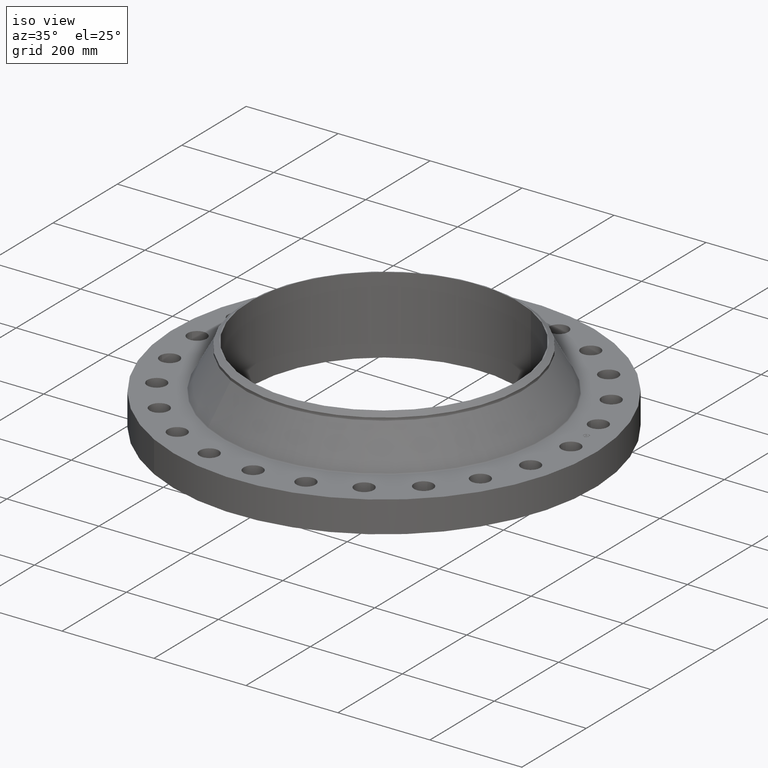
[diagram: clean part render]
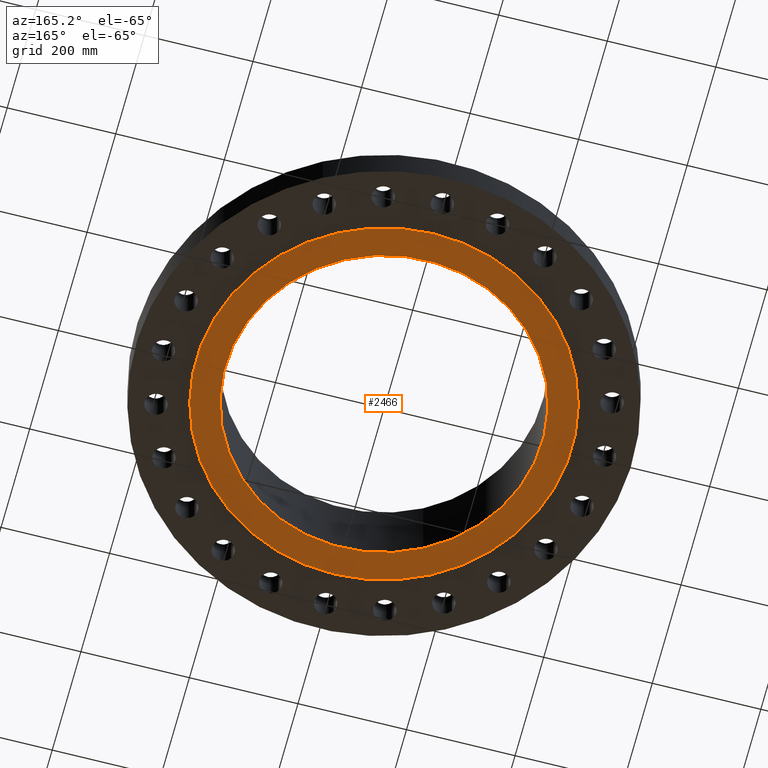
[diagram: tour spotlight — one face highlighted and labeled with its STEP entity id]
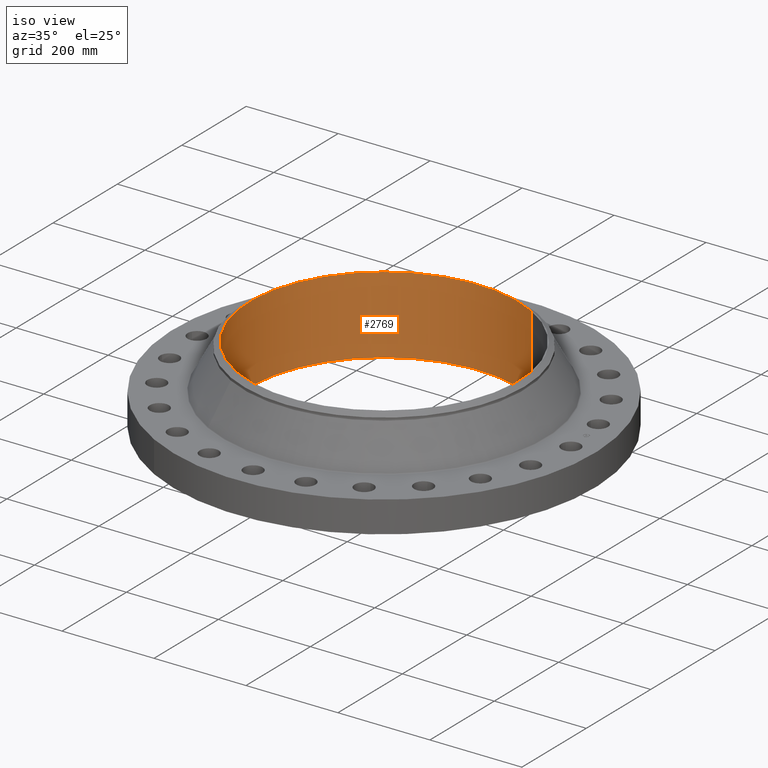
[diagram: tour spotlight — one face highlighted and labeled with its STEP entity id]
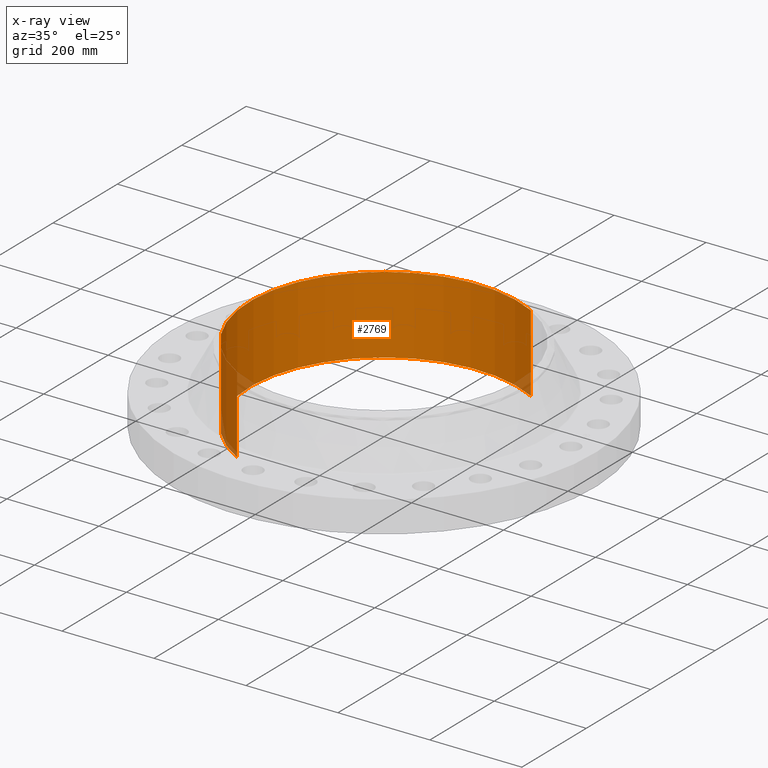
[diagram: x-ray of the same camera — body ghosted, this tour face saturated]
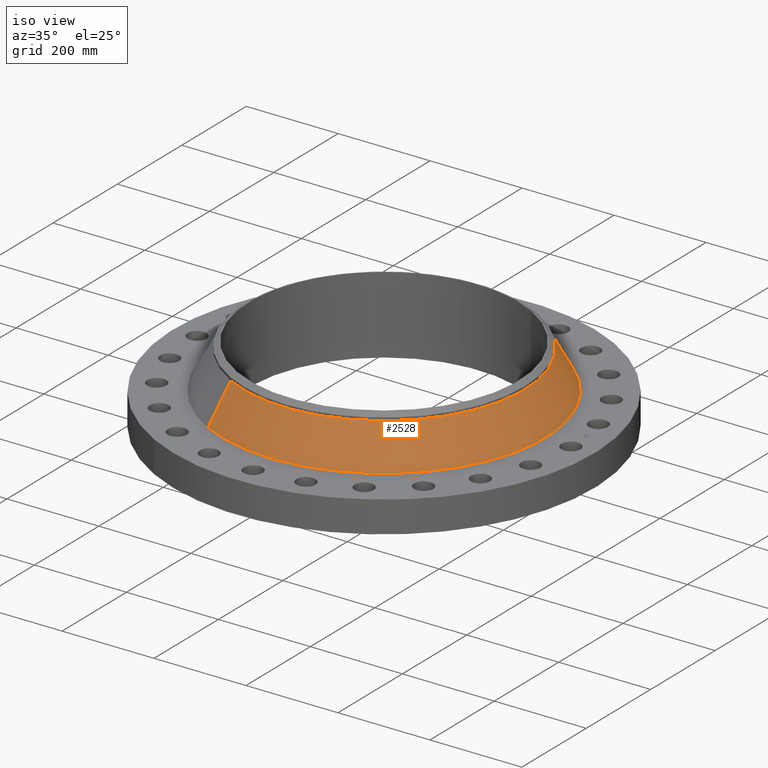
[diagram: tour spotlight — one face highlighted and labeled with its STEP entity id]
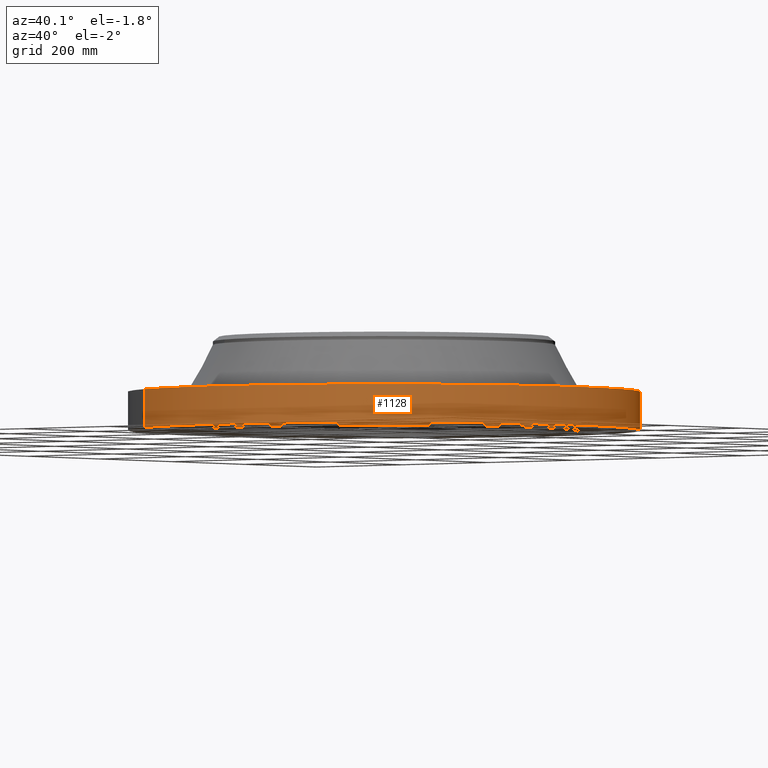
[diagram: tour spotlight — one face highlighted and labeled with its STEP entity id]
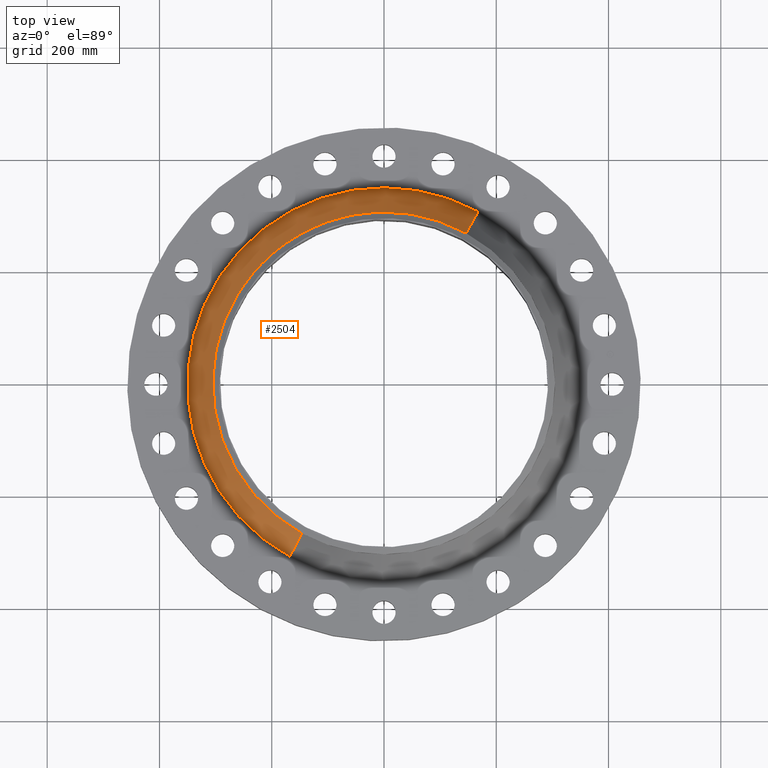
[diagram: tour spotlight — one face highlighted and labeled with its STEP entity id]
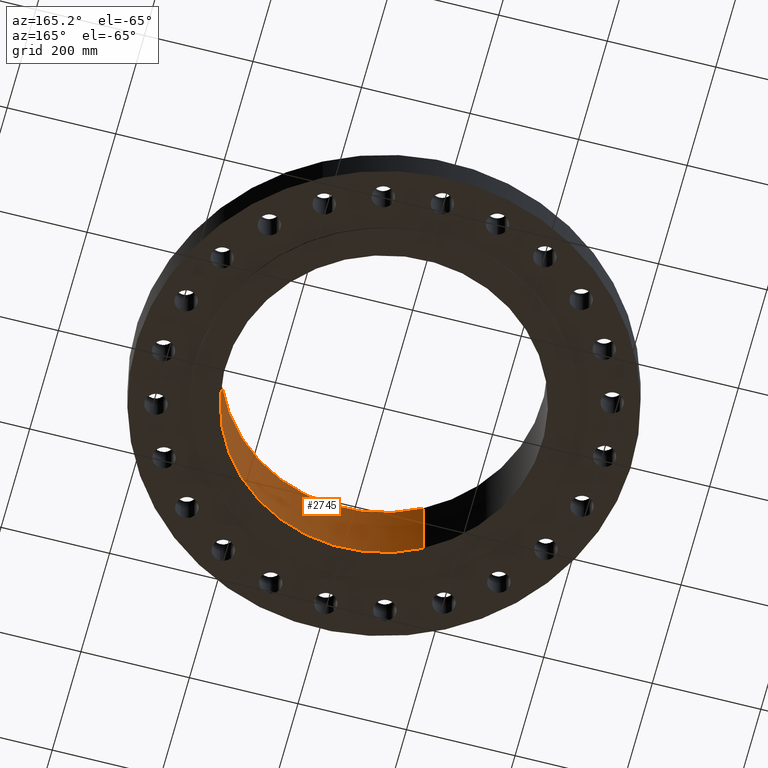
[diagram: tour spotlight — one face highlighted and labeled with its STEP entity id]
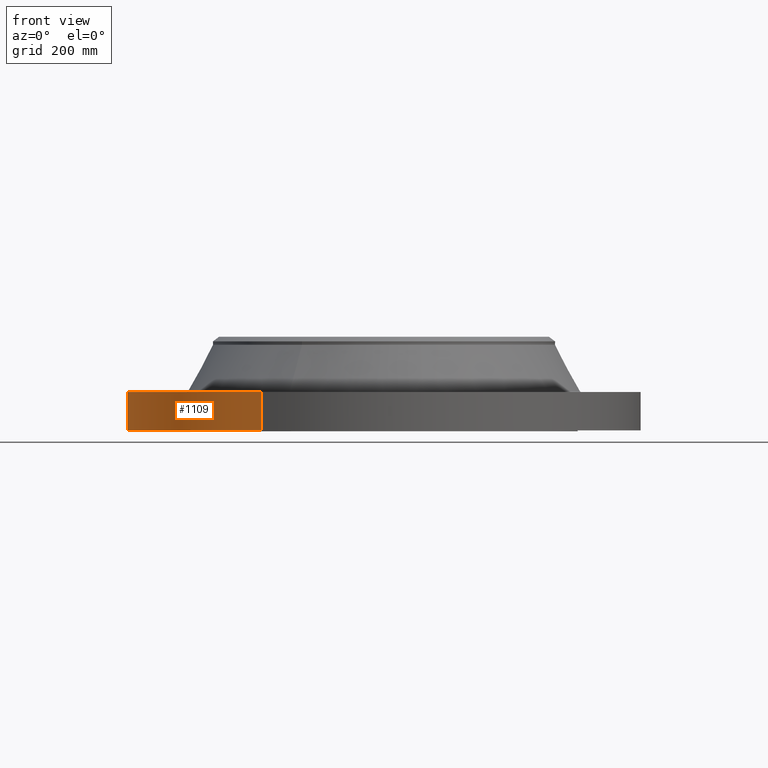
[diagram: tour spotlight — one face highlighted and labeled with its STEP entity id]
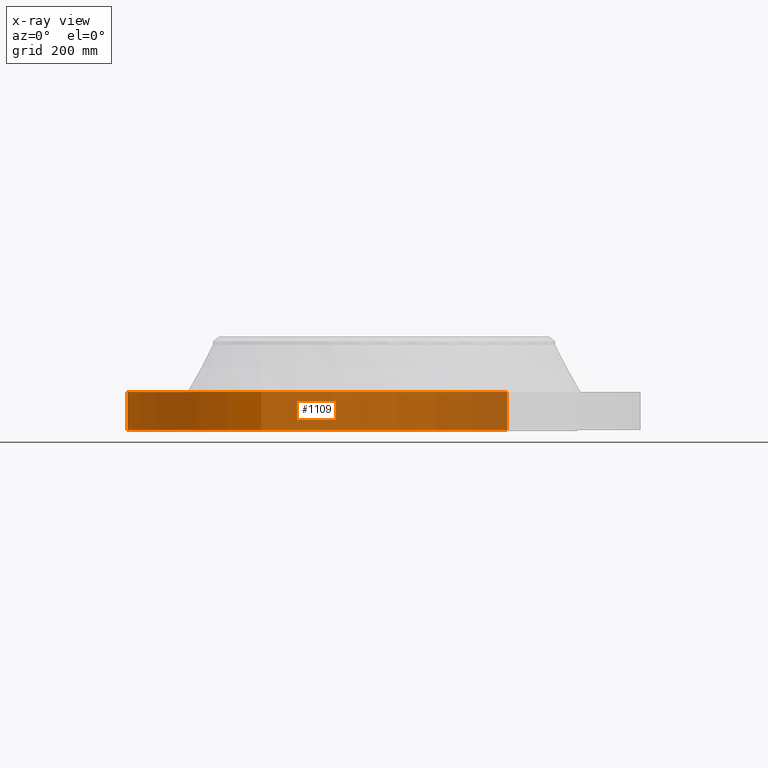
[diagram: x-ray of the same camera — body ghosted, this tour face saturated]
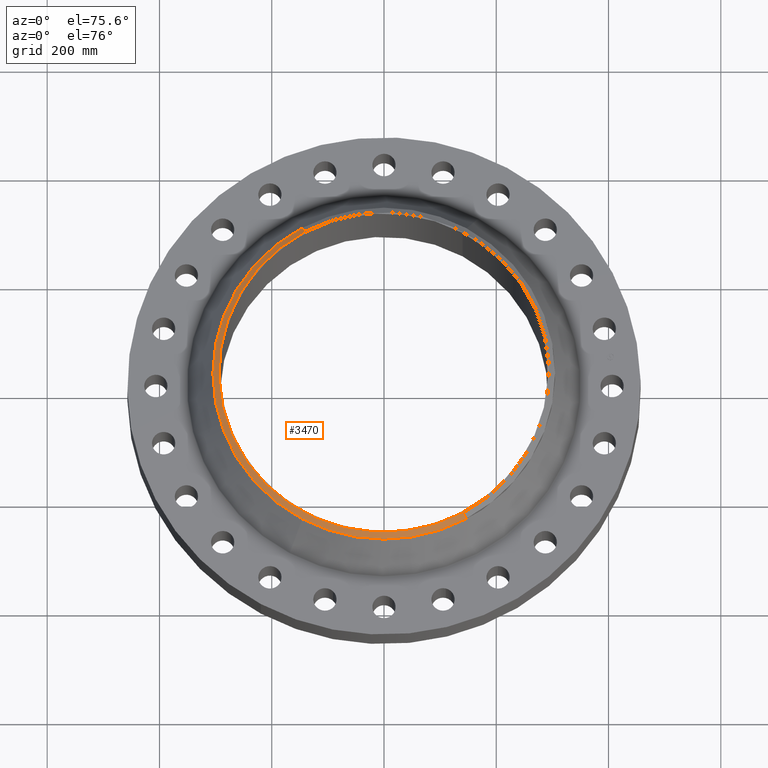
[diagram: tour spotlight — one face highlighted and labeled with its STEP entity id]
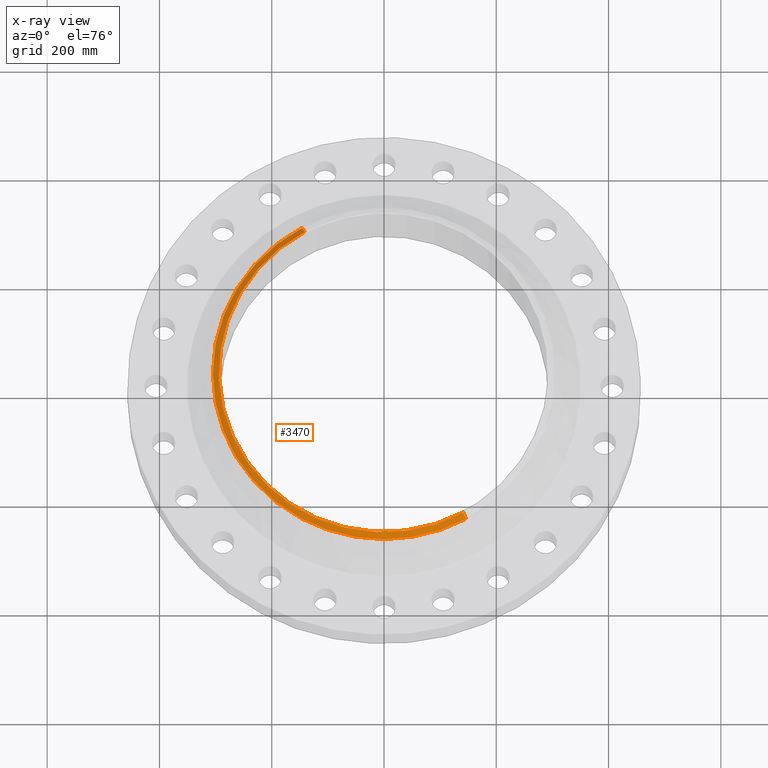
[diagram: x-ray of the same camera — body ghosted, this tour face saturated]
A machine part: a face-by-face anatomy tour. The part has 451 B-rep faces; the first image is the clean iso view, then the 8 largest visible faces are spotlighted one at a time (largest first), each with its STEP entity span.

Face 1 — auxiliary view, entity #2466. In plain terms, the highlighted planar face has unit normal (0, 0, -1).
Definition (entity closure, byte-faithful):
#1143=AXIS2_PLACEMENT_3D('Circle Axis2P3D',#1141,#1142,$) ;
#1181=AXIS2_PLACEMENT_3D('Circle Axis2P3D',#1179,#1180,$) ;
#2442=AXIS2_PLACEMENT_3D('Plane Axis2P3D',#2439,#2440,#2441) ;
#2450=AXIS2_PLACEMENT_3D('Circle Axis2P3D',#2448,#2449,$) ;
#2459=AXIS2_PLACEMENT_3D('Circle Axis2P3D',#2457,#2458,$) ;
#1141=CARTESIAN_POINT('Axis2P3D Location',(0.,0.,-0.0624999999941)) ;
#1145=CARTESIAN_POINT('Vertex',(6.53217296351,11.9570624058,-0.0625000000003)) ;
#1147=CARTESIAN_POINT('Vertex',(-6.53217296351,-11.9570624058,-0.0625000000003)) ;
#1179=CARTESIAN_POINT('Axis2P3D Location',(0.,0.,-0.0625000000002)) ;
#2439=CARTESIAN_POINT('Axis2P3D Location',(0.,11.5,-0.0625000000003)) ;
#2448=CARTESIAN_POINT('Axis2P3D Location',(-4.36631308537E-011,1.85748179742E-012,-0.0625000000003)) ;
#2452=CARTESIAN_POINT('Vertex',(5.51339369395,10.0921994617,-0.0625000000004)) ;
#2454=CARTESIAN_POINT('Vertex',(-5.51339369395,-10.0921994617,-0.0624999999941)) ;
#2457=CARTESIAN_POINT('Axis2P3D Location',(1.28099106126E-011,-2.89990953385E-011,-0.0625000000003)) ;
#1142=DIRECTION('Axis2P3D Direction',(0.,0.,-0.0393700787402)) ;
#1180=DIRECTION('Axis2P3D Direction',(0.,0.,-0.0393700787402)) ;
#2440=DIRECTION('Axis2P3D Direction',(0.,0.,-0.0393700787402)) ;
#2441=DIRECTION('Axis2P3D XDirection',(0.0393700787402,0.,0.)) ;
#2449=DIRECTION('Axis2P3D Direction',(0.,0.,-0.0393700787402)) ;
#2458=DIRECTION('Axis2P3D Direction',(0.,0.,-0.0393700787402)) ;
#2445=ORIENTED_EDGE('',*,*,#1183,.T.) ;
#2446=ORIENTED_EDGE('',*,*,#1149,.T.) ;
#2463=ORIENTED_EDGE('',*,*,#2456,.F.) ;
#2464=ORIENTED_EDGE('',*,*,#2461,.F.) ;
#2465=FACE_BOUND('',#2462,.T.) ;
#2466=ADVANCED_FACE('PartBody',(#2447,#2465),#2443,.T.) ;
#1144=CIRCLE('generated circle',#1143,13.6250000001) ;
#1182=CIRCLE('generated circle',#1181,13.6250000001) ;
#2451=CIRCLE('generated circle',#2450,11.5) ;
#2460=CIRCLE('generated circle',#2459,11.5) ;
#1149=EDGE_CURVE('',#1146,#1148,#1144,.T.) ;
#1183=EDGE_CURVE('',#1148,#1146,#1182,.T.) ;
#2456=EDGE_CURVE('',#2453,#2455,#2451,.T.) ;
#2461=EDGE_CURVE('',#2455,#2453,#2460,.T.) ;
#2444=EDGE_LOOP('',(#2445,#2446)) ;
#2462=EDGE_LOOP('',(#2463,#2464)) ;
#2447=FACE_OUTER_BOUND('',#2444,.T.) ;
#2443=PLANE('',#2442) ;
#1146=VERTEX_POINT('',#1145) ;
#1148=VERTEX_POINT('',#1147) ;
#2453=VERTEX_POINT('',#2452) ;
#2455=VERTEX_POINT('',#2454) ;

Face 2 — iso view, entity #2769. An x-ray twin of the same camera follows (body ghosted, this face saturated) — the face is partly hidden behind the body. In plain terms, the highlighted cylindrical surface (partial cylindrical patch) has radius 292.1 mm, axis along (-0, 0, -1).
Definition (entity closure, byte-faithful):
#2459=AXIS2_PLACEMENT_3D('Circle Axis2P3D',#2457,#2458,$) ;
#2756=AXIS2_PLACEMENT_3D('Cylinder Axis2P3D',#2753,#2754,#2755) ;
#2760=AXIS2_PLACEMENT_3D('Circle Axis2P3D',#2758,#2759,$) ;
#2452=CARTESIAN_POINT('Vertex',(5.51339369395,10.0921994617,-0.0625000000004)) ;
#2454=CARTESIAN_POINT('Vertex',(-5.51339369395,-10.0921994617,-0.0624999999941)) ;
#2457=CARTESIAN_POINT('Axis2P3D Location',(1.28099106126E-011,-2.89990953385E-011,-0.0625000000003)) ;
#2724=CARTESIAN_POINT('Vertex',(5.51339369395,10.0921994617,6.56000000001)) ;
#2726=CARTESIAN_POINT('Vertex',(-5.51339369394,-10.0921994617,6.56000000001)) ;
#2729=CARTESIAN_POINT('Line Origine',(5.51339369395,10.0921994617,3.24875000001)) ;
#2734=CARTESIAN_POINT('Line Origine',(-5.51339369395,-10.0921994617,3.24875000001)) ;
#2753=CARTESIAN_POINT('Axis2P3D Location',(0.,0.,3.24875000001)) ;
#2758=CARTESIAN_POINT('Axis2P3D Location',(0.,0.,6.56000000001)) ;
#2458=DIRECTION('Axis2P3D Direction',(0.,0.,-0.0393700787402)) ;
#2730=DIRECTION('Vector Direction',(0.,0.,-0.0393700787402)) ;
#2735=DIRECTION('Vector Direction',(0.,0.,-0.0393700787402)) ;
#2754=DIRECTION('Axis2P3D Direction',(-0.,0.,-0.0393700787402)) ;
#2755=DIRECTION('Axis2P3D XDirection',(-0.0188750212049,-0.0345504945626,0.)) ;
#2759=DIRECTION('Axis2P3D Direction',(-0.,0.,-0.0393700787402)) ;
#2731=VECTOR('Line Direction',#2730,0.0393700787402) ;
#2736=VECTOR('Line Direction',#2735,0.0393700787402) ;
#2764=ORIENTED_EDGE('',*,*,#2762,.F.) ;
#2765=ORIENTED_EDGE('',*,*,#2738,.T.) ;
#2766=ORIENTED_EDGE('',*,*,#2461,.T.) ;
#2767=ORIENTED_EDGE('',*,*,#2733,.F.) ;
#2769=ADVANCED_FACE('PartBody',(#2768),#2757,.F.) ;
#2460=CIRCLE('generated circle',#2459,11.5) ;
#2761=CIRCLE('generated circle',#2760,11.5) ;
#2757=CYLINDRICAL_SURFACE('generated cylinder',#2756,11.5) ;
#2461=EDGE_CURVE('',#2455,#2453,#2460,.T.) ;
#2733=EDGE_CURVE('',#2725,#2453,#2732,.T.) ;
#2738=EDGE_CURVE('',#2727,#2455,#2737,.T.) ;
#2762=EDGE_CURVE('',#2727,#2725,#2761,.T.) ;
#2763=EDGE_LOOP('',(#2764,#2765,#2766,#2767)) ;
#2768=FACE_OUTER_BOUND('',#2763,.T.) ;
#2732=LINE('Line',#2729,#2731) ;
#2737=LINE('Line',#2734,#2736) ;
#2453=VERTEX_POINT('',#2452) ;
#2455=VERTEX_POINT('',#2454) ;
#2725=VERTEX_POINT('',#2724) ;
#2727=VERTEX_POINT('',#2726) ;

Face 3 — iso view, entity #2528. In plain terms, the highlighted conical surface has half-angle 28.667 deg.
Definition (entity closure, byte-faithful):
#2347=AXIS2_PLACEMENT_3D('Circle Axis2P3D',#2345,#2346,$) ;
#2515=AXIS2_PLACEMENT_3D('Cone Axis2P3D',#2512,#2513,#2514) ;
#2519=AXIS2_PLACEMENT_3D('Circle Axis2P3D',#2517,#2518,$) ;
#2311=CARTESIAN_POINT('Vertex',(-6.60450156515,-12.089459023,2.75243351423)) ;
#2318=CARTESIAN_POINT('Vertex',(6.60450156517,12.089459023,2.75243351421)) ;
#2345=CARTESIAN_POINT('Axis2P3D Location',(0.,0.,2.75243351421)) ;
#2479=CARTESIAN_POINT('Line Origine',(-6.1788040142,-11.3102248828,4.37648449784)) ;
#2483=CARTESIAN_POINT('Vertex',(-5.75310646325,-10.5309907427,6.00053548147)) ;
#2490=CARTESIAN_POINT('Vertex',(5.75310646326,10.5309907427,6.00053548146)) ;
#2493=CARTESIAN_POINT('Line Origine',(6.1788040142,11.3102248828,4.37648449784)) ;
#2512=CARTESIAN_POINT('Axis2P3D Location',(0.,0.,6.00053548147)) ;
#2517=CARTESIAN_POINT('Axis2P3D Location',(0.,0.,6.00053548147)) ;
#2346=DIRECTION('Axis2P3D Direction',(-0.,0.,-0.0393700787402)) ;
#2480=DIRECTION('Vector Direction',(-0.00905473866589,-0.0165745879512,-0.0345441433813)) ;
#2494=DIRECTION('Vector Direction',(0.00905473866589,0.0165745879512,-0.0345441433813)) ;
#2513=DIRECTION('Axis2P3D Direction',(0.,0.,-0.0393700787402)) ;
#2514=DIRECTION('Axis2P3D XDirection',(0.0188750212049,0.0345504945626,0.)) ;
#2518=DIRECTION('Axis2P3D Direction',(-0.,0.,-0.0393700787402)) ;
#2481=VECTOR('Line Direction',#2480,0.0393700787402) ;
#2495=VECTOR('Line Direction',#2494,0.0393700787402) ;
#2523=ORIENTED_EDGE('',*,*,#2349,.F.) ;
#2524=ORIENTED_EDGE('',*,*,#2497,.T.) ;
#2525=ORIENTED_EDGE('',*,*,#2521,.T.) ;
#2526=ORIENTED_EDGE('',*,*,#2485,.F.) ;
#2528=ADVANCED_FACE('PartBody',(#2527),#2516,.T.) ;
#2348=CIRCLE('generated circle',#2347,13.7758651414) ;
#2520=CIRCLE('generated circle',#2519,12.) ;
#2516=CONICAL_SURFACE('Cone',#2515,12.,0.500336382494) ;
#2349=EDGE_CURVE('',#2319,#2312,#2348,.T.) ;
#2485=EDGE_CURVE('',#2312,#2484,#2482,.F.) ;
#2497=EDGE_CURVE('',#2319,#2491,#2496,.F.) ;
#2521=EDGE_CURVE('',#2491,#2484,#2520,.T.) ;
#2522=EDGE_LOOP('',(#2523,#2524,#2525,#2526)) ;
#2527=FACE_OUTER_BOUND('',#2522,.T.) ;
#2482=LINE('Line',#2479,#2481) ;
#2496=LINE('Line',#2493,#2495) ;
#2312=VERTEX_POINT('',#2311) ;
#2319=VERTEX_POINT('',#2318) ;
#2484=VERTEX_POINT('',#2483) ;
#2491=VERTEX_POINT('',#2490) ;

Face 4 — auxiliary view, entity #1128. In plain terms, the highlighted cylindrical surface (partial cylindrical patch) has radius 457.2 mm, axis along (0, 0, -1).
Definition (entity closure, byte-faithful):
#152=AXIS2_PLACEMENT_3D('Circle Axis2P3D',#150,#151,$) ;
#610=AXIS2_PLACEMENT_3D('Circle Axis2P3D',#608,#609,$) ;
#1120=AXIS2_PLACEMENT_3D('Cylinder Axis2P3D',#1117,#1118,#1119) ;
#145=CARTESIAN_POINT('Vertex',(-8.62965969493,-15.7964861141,1.1189649382E-015)) ;
#147=CARTESIAN_POINT('Vertex',(8.62965969493,15.7964861141,2.05587428096E-011)) ;
#150=CARTESIAN_POINT('Axis2P3D Location',(4.36664877485E-011,-4.51838042047E-012,0.)) ;
#608=CARTESIAN_POINT('Axis2P3D Location',(4.36664877485E-011,-4.52061835035E-012,2.69000000001)) ;
#612=CARTESIAN_POINT('Vertex',(8.62965969492,15.7964861141,2.69)) ;
#614=CARTESIAN_POINT('Vertex',(-8.62965969493,-15.7964861141,2.69)) ;
#1093=CARTESIAN_POINT('Line Origine',(-8.62965969493,-15.7964861141,1.34500000001)) ;
#1098=CARTESIAN_POINT('Line Origine',(8.62965969493,15.7964861141,1.34500000001)) ;
#1117=CARTESIAN_POINT('Axis2P3D Location',(0.,0.,3.24875000001)) ;
#151=DIRECTION('Axis2P3D Direction',(0.,0.,-0.0393700787402)) ;
#609=DIRECTION('Axis2P3D Direction',(0.,0.,-0.0393700787402)) ;
#1094=DIRECTION('Vector Direction',(0.,0.,-0.0393700787402)) ;
#1099=DIRECTION('Vector Direction',(0.,0.,-0.0393700787402)) ;
#1118=DIRECTION('Axis2P3D Direction',(0.,0.,-0.0393700787402)) ;
#1119=DIRECTION('Axis2P3D XDirection',(0.0188750212049,0.0345504945626,0.)) ;
#1095=VECTOR('Line Direction',#1094,0.0393700787402) ;
#1100=VECTOR('Line Direction',#1099,0.0393700787402) ;
#1123=ORIENTED_EDGE('',*,*,#154,.F.) ;
#1124=ORIENTED_EDGE('',*,*,#1102,.T.) ;
#1125=ORIENTED_EDGE('',*,*,#616,.T.) ;
#1126=ORIENTED_EDGE('',*,*,#1097,.F.) ;
#1128=ADVANCED_FACE('PartBody',(#1127),#1121,.T.) ;
#153=CIRCLE('generated circle',#152,18.0000000001) ;
#611=CIRCLE('generated circle',#610,18.0000000001) ;
#1121=CYLINDRICAL_SURFACE('generated cylinder',#1120,18.0000000001) ;
#154=EDGE_CURVE('',#148,#146,#153,.T.) ;
#616=EDGE_CURVE('',#613,#615,#611,.T.) ;
#1097=EDGE_CURVE('',#146,#615,#1096,.F.) ;
#1102=EDGE_CURVE('',#148,#613,#1101,.F.) ;
#1122=EDGE_LOOP('',(#1123,#1124,#1125,#1126)) ;
#1127=FACE_OUTER_BOUND('',#1122,.T.) ;
#1096=LINE('Line',#1093,#1095) ;
#1101=LINE('Line',#1098,#1100) ;
#146=VERTEX_POINT('',#145) ;
#148=VERTEX_POINT('',#147) ;
#613=VERTEX_POINT('',#612) ;
#615=VERTEX_POINT('',#614) ;

Face 5 — top view, entity #2504. In plain terms, the highlighted conical surface has half-angle 28.667 deg.
Definition (entity closure, byte-faithful):
#2316=AXIS2_PLACEMENT_3D('Circle Axis2P3D',#2314,#2315,$) ;
#2477=AXIS2_PLACEMENT_3D('Cone Axis2P3D',#2474,#2475,#2476) ;
#2488=AXIS2_PLACEMENT_3D('Circle Axis2P3D',#2486,#2487,$) ;
#2311=CARTESIAN_POINT('Vertex',(-6.60450156515,-12.089459023,2.75243351423)) ;
#2314=CARTESIAN_POINT('Axis2P3D Location',(0.,0.,2.75243351421)) ;
#2318=CARTESIAN_POINT('Vertex',(6.60450156517,12.089459023,2.75243351421)) ;
#2474=CARTESIAN_POINT('Axis2P3D Location',(0.,0.,6.00053548147)) ;
#2479=CARTESIAN_POINT('Line Origine',(-6.1788040142,-11.3102248828,4.37648449784)) ;
#2483=CARTESIAN_POINT('Vertex',(-5.75310646325,-10.5309907427,6.00053548147)) ;
#2486=CARTESIAN_POINT('Axis2P3D Location',(0.,0.,6.00053548147)) ;
#2490=CARTESIAN_POINT('Vertex',(5.75310646326,10.5309907427,6.00053548146)) ;
#2493=CARTESIAN_POINT('Line Origine',(6.1788040142,11.3102248828,4.37648449784)) ;
#2315=DIRECTION('Axis2P3D Direction',(-0.,0.,-0.0393700787402)) ;
#2475=DIRECTION('Axis2P3D Direction',(0.,0.,-0.0393700787402)) ;
#2476=DIRECTION('Axis2P3D XDirection',(-0.0188750212049,-0.0345504945626,0.)) ;
#2480=DIRECTION('Vector Direction',(-0.00905473866589,-0.0165745879512,-0.0345441433813)) ;
#2487=DIRECTION('Axis2P3D Direction',(-0.,0.,-0.0393700787402)) ;
#2494=DIRECTION('Vector Direction',(0.00905473866589,0.0165745879512,-0.0345441433813)) ;
#2481=VECTOR('Line Direction',#2480,0.0393700787402) ;
#2495=VECTOR('Line Direction',#2494,0.0393700787402) ;
#2499=ORIENTED_EDGE('',*,*,#2320,.F.) ;
#2500=ORIENTED_EDGE('',*,*,#2485,.T.) ;
#2501=ORIENTED_EDGE('',*,*,#2492,.T.) ;
#2502=ORIENTED_EDGE('',*,*,#2497,.F.) ;
#2504=ADVANCED_FACE('PartBody',(#2503),#2478,.T.) ;
#2317=CIRCLE('generated circle',#2316,13.7758651414) ;
#2489=CIRCLE('generated circle',#2488,12.) ;
#2478=CONICAL_SURFACE('Cone',#2477,12.,0.500336382494) ;
#2320=EDGE_CURVE('',#2312,#2319,#2317,.T.) ;
#2485=EDGE_CURVE('',#2312,#2484,#2482,.F.) ;
#2492=EDGE_CURVE('',#2484,#2491,#2489,.T.) ;
#2497=EDGE_CURVE('',#2319,#2491,#2496,.F.) ;
#2498=EDGE_LOOP('',(#2499,#2500,#2501,#2502)) ;
#2503=FACE_OUTER_BOUND('',#2498,.T.) ;
#2482=LINE('Line',#2479,#2481) ;
#2496=LINE('Line',#2493,#2495) ;
#2312=VERTEX_POINT('',#2311) ;
#2319=VERTEX_POINT('',#2318) ;
#2484=VERTEX_POINT('',#2483) ;
#2491=VERTEX_POINT('',#2490) ;

Face 6 — auxiliary view, entity #2745. In plain terms, the highlighted cylindrical surface (partial cylindrical patch) has radius 292.1 mm, axis along (-0, 0, -1).
Definition (entity closure, byte-faithful):
#2450=AXIS2_PLACEMENT_3D('Circle Axis2P3D',#2448,#2449,$) ;
#2718=AXIS2_PLACEMENT_3D('Cylinder Axis2P3D',#2715,#2716,#2717) ;
#2722=AXIS2_PLACEMENT_3D('Circle Axis2P3D',#2720,#2721,$) ;
#2448=CARTESIAN_POINT('Axis2P3D Location',(-4.36631308537E-011,1.85748179742E-012,-0.0625000000003)) ;
#2452=CARTESIAN_POINT('Vertex',(5.51339369395,10.0921994617,-0.0625000000004)) ;
#2454=CARTESIAN_POINT('Vertex',(-5.51339369395,-10.0921994617,-0.0624999999941)) ;
#2715=CARTESIAN_POINT('Axis2P3D Location',(0.,0.,3.24875000001)) ;
#2720=CARTESIAN_POINT('Axis2P3D Location',(0.,0.,6.56000000003)) ;
#2724=CARTESIAN_POINT('Vertex',(5.51339369395,10.0921994617,6.56000000001)) ;
#2726=CARTESIAN_POINT('Vertex',(-5.51339369394,-10.0921994617,6.56000000001)) ;
#2729=CARTESIAN_POINT('Line Origine',(5.51339369395,10.0921994617,3.24875000001)) ;
#2734=CARTESIAN_POINT('Line Origine',(-5.51339369395,-10.0921994617,3.24875000001)) ;
#2449=DIRECTION('Axis2P3D Direction',(0.,0.,-0.0393700787402)) ;
#2716=DIRECTION('Axis2P3D Direction',(-0.,0.,-0.0393700787402)) ;
#2717=DIRECTION('Axis2P3D XDirection',(0.0188750212049,0.0345504945626,0.)) ;
#2721=DIRECTION('Axis2P3D Direction',(-0.,0.,-0.0393700787402)) ;
#2730=DIRECTION('Vector Direction',(0.,0.,-0.0393700787402)) ;
#2735=DIRECTION('Vector Direction',(0.,0.,-0.0393700787402)) ;
#2731=VECTOR('Line Direction',#2730,0.0393700787402) ;
#2736=VECTOR('Line Direction',#2735,0.0393700787402) ;
#2740=ORIENTED_EDGE('',*,*,#2728,.F.) ;
#2741=ORIENTED_EDGE('',*,*,#2733,.T.) ;
#2742=ORIENTED_EDGE('',*,*,#2456,.T.) ;
#2743=ORIENTED_EDGE('',*,*,#2738,.F.) ;
#2745=ADVANCED_FACE('PartBody',(#2744),#2719,.F.) ;
#2451=CIRCLE('generated circle',#2450,11.5) ;
#2723=CIRCLE('generated circle',#2722,11.5) ;
#2719=CYLINDRICAL_SURFACE('generated cylinder',#2718,11.5) ;
#2456=EDGE_CURVE('',#2453,#2455,#2451,.T.) ;
#2728=EDGE_CURVE('',#2725,#2727,#2723,.T.) ;
#2733=EDGE_CURVE('',#2725,#2453,#2732,.T.) ;
#2738=EDGE_CURVE('',#2727,#2455,#2737,.T.) ;
#2739=EDGE_LOOP('',(#2740,#2741,#2742,#2743)) ;
#2744=FACE_OUTER_BOUND('',#2739,.T.) ;
#2732=LINE('Line',#2729,#2731) ;
#2737=LINE('Line',#2734,#2736) ;
#2453=VERTEX_POINT('',#2452) ;
#2455=VERTEX_POINT('',#2454) ;
#2725=VERTEX_POINT('',#2724) ;
#2727=VERTEX_POINT('',#2726) ;

Face 7 — front view, entity #1109. An x-ray twin of the same camera follows (body ghosted, this face saturated) — the face is partly hidden behind the body. In plain terms, the highlighted cylindrical surface (partial cylindrical patch) has radius 457.2 mm, axis along (0, 0, -1).
Definition (entity closure, byte-faithful):
#143=AXIS2_PLACEMENT_3D('Circle Axis2P3D',#141,#142,$) ;
#619=AXIS2_PLACEMENT_3D('Circle Axis2P3D',#617,#618,$) ;
#1091=AXIS2_PLACEMENT_3D('Cylinder Axis2P3D',#1088,#1089,#1090) ;
#141=CARTESIAN_POINT('Axis2P3D Location',(-1.28143864723E-011,2.63337208557E-011,0.)) ;
#145=CARTESIAN_POINT('Vertex',(-8.62965969493,-15.7964861141,1.1189649382E-015)) ;
#147=CARTESIAN_POINT('Vertex',(8.62965969493,15.7964861141,2.05587428096E-011)) ;
#612=CARTESIAN_POINT('Vertex',(8.62965969492,15.7964861141,2.69)) ;
#614=CARTESIAN_POINT('Vertex',(-8.62965969493,-15.7964861141,2.69)) ;
#617=CARTESIAN_POINT('Axis2P3D Location',(-1.28143864723E-011,2.63314829258E-011,2.69000000001)) ;
#1088=CARTESIAN_POINT('Axis2P3D Location',(0.,0.,3.24875000001)) ;
#1093=CARTESIAN_POINT('Line Origine',(-8.62965969493,-15.7964861141,1.34500000001)) ;
#1098=CARTESIAN_POINT('Line Origine',(8.62965969493,15.7964861141,1.34500000001)) ;
#142=DIRECTION('Axis2P3D Direction',(0.,0.,-0.0393700787402)) ;
#618=DIRECTION('Axis2P3D Direction',(0.,0.,-0.0393700787402)) ;
#1089=DIRECTION('Axis2P3D Direction',(0.,0.,-0.0393700787402)) ;
#1090=DIRECTION('Axis2P3D XDirection',(-0.0188750212049,-0.0345504945626,0.)) ;
#1094=DIRECTION('Vector Direction',(0.,0.,-0.0393700787402)) ;
#1099=DIRECTION('Vector Direction',(0.,0.,-0.0393700787402)) ;
#1095=VECTOR('Line Direction',#1094,0.0393700787402) ;
#1100=VECTOR('Line Direction',#1099,0.0393700787402) ;
#1104=ORIENTED_EDGE('',*,*,#149,.F.) ;
#1105=ORIENTED_EDGE('',*,*,#1097,.T.) ;
#1106=ORIENTED_EDGE('',*,*,#621,.T.) ;
#1107=ORIENTED_EDGE('',*,*,#1102,.F.) ;
#1109=ADVANCED_FACE('PartBody',(#1108),#1092,.T.) ;
#144=CIRCLE('generated circle',#143,18.0000000001) ;
#620=CIRCLE('generated circle',#619,18.0000000001) ;
#1092=CYLINDRICAL_SURFACE('generated cylinder',#1091,18.0000000001) ;
#149=EDGE_CURVE('',#146,#148,#144,.T.) ;
#621=EDGE_CURVE('',#615,#613,#620,.T.) ;
#1097=EDGE_CURVE('',#146,#615,#1096,.F.) ;
#1102=EDGE_CURVE('',#148,#613,#1101,.F.) ;
#1103=EDGE_LOOP('',(#1104,#1105,#1106,#1107)) ;
#1108=FACE_OUTER_BOUND('',#1103,.T.) ;
#1096=LINE('Line',#1093,#1095) ;
#1101=LINE('Line',#1098,#1100) ;
#146=VERTEX_POINT('',#145) ;
#148=VERTEX_POINT('',#147) ;
#613=VERTEX_POINT('',#612) ;
#615=VERTEX_POINT('',#614) ;

Face 8 — auxiliary view, entity #3470. An x-ray twin of the same camera follows (body ghosted, this face saturated) — the face is partly hidden behind the body. In plain terms, the highlighted conical surface has half-angle 52.5 deg.
Definition (entity closure, byte-faithful):
#2798=AXIS2_PLACEMENT_3D('Circle Axis2P3D',#2796,#2797,$) ;
#2837=AXIS2_PLACEMENT_3D('Circle Axis2P3D',#2835,#2836,$) ;
#3429=AXIS2_PLACEMENT_3D('Circle Axis2P3D',#3427,#3428,$) ;
#3451=AXIS2_PLACEMENT_3D('Cone Axis2P3D',#3448,#3449,#3450) ;
#2793=CARTESIAN_POINT('Vertex',(-5.75310646325,-10.5309907427,6.23675595392)) ;
#2796=CARTESIAN_POINT('Axis2P3D Location',(0.,0.,6.23675595392)) ;
#2800=CARTESIAN_POINT('Vertex',(-5.75310646326,10.5309907427,6.23675595392)) ;
#2832=CARTESIAN_POINT('Vertex',(5.75310646326,-10.5309907427,6.23675595392)) ;
#2835=CARTESIAN_POINT('Axis2P3D Location',(0.,0.,6.23675595392)) ;
#3422=CARTESIAN_POINT('Vertex',(5.55114373638,-10.1613004509,6.56000000002)) ;
#3424=CARTESIAN_POINT('Vertex',(-5.55114373637,10.1613004509,6.56000000003)) ;
#3427=CARTESIAN_POINT('Axis2P3D Location',(4.36656485248E-011,3.11900286875E-011,6.56000000003)) ;
#3448=CARTESIAN_POINT('Axis2P3D Location',(0.,0.,6.56000000003)) ;
#3453=CARTESIAN_POINT('Line Origine',(5.65212509982,-10.3461455968,6.39837797697)) ;
#3458=CARTESIAN_POINT('Line Origine',(-5.65212509982,10.3461455968,6.39837797697)) ;
#2797=DIRECTION('Axis2P3D Direction',(-0.,0.,-0.0393700787402)) ;
#2836=DIRECTION('Axis2P3D Direction',(-0.,0.,-0.0393700787402)) ;
#3428=DIRECTION('Axis2P3D Direction',(0.,0.,-0.0393700787402)) ;
#3449=DIRECTION('Axis2P3D Direction',(-0.,-0.,-0.0393700787402)) ;
#3450=DIRECTION('Axis2P3D XDirection',(0.0188750212049,-0.0345504945626,0.)) ;
#3454=DIRECTION('Vector Direction',(0.014974561121,-0.02741075027,-0.023966985394)) ;
#3459=DIRECTION('Vector Direction',(-0.014974561121,0.02741075027,-0.023966985394)) ;
#3455=VECTOR('Line Direction',#3454,0.0393700787402) ;
#3460=VECTOR('Line Direction',#3459,0.0393700787402) ;
#3464=ORIENTED_EDGE('',*,*,#3457,.F.) ;
#3465=ORIENTED_EDGE('',*,*,#3431,.F.) ;
#3466=ORIENTED_EDGE('',*,*,#3462,.T.) ;
#3467=ORIENTED_EDGE('',*,*,#2802,.T.) ;
#3468=ORIENTED_EDGE('',*,*,#2839,.F.) ;
#3470=ADVANCED_FACE('PartBody',(#3469),#3452,.T.) ;
#2799=CIRCLE('generated circle',#2798,12.) ;
#2838=CIRCLE('generated circle',#2837,12.) ;
#3430=CIRCLE('generated circle',#3429,11.5787401575) ;
#3452=CONICAL_SURFACE('Cone',#3451,11.5787401575,0.916297857297) ;
#2802=EDGE_CURVE('',#2801,#2794,#2799,.F.) ;
#2839=EDGE_CURVE('',#2833,#2794,#2838,.T.) ;
#3431=EDGE_CURVE('',#3425,#3423,#3430,.F.) ;
#3457=EDGE_CURVE('',#3423,#2833,#3456,.T.) ;
#3462=EDGE_CURVE('',#3425,#2801,#3461,.T.) ;
#3463=EDGE_LOOP('',(#3464,#3465,#3466,#3467,#3468)) ;
#3469=FACE_OUTER_BOUND('',#3463,.T.) ;
#3456=LINE('Line',#3453,#3455) ;
#3461=LINE('Line',#3458,#3460) ;
#2794=VERTEX_POINT('',#2793) ;
#2801=VERTEX_POINT('',#2800) ;
#2833=VERTEX_POINT('',#2832) ;
#3423=VERTEX_POINT('',#3422) ;
#3425=VERTEX_POINT('',#3424) ;